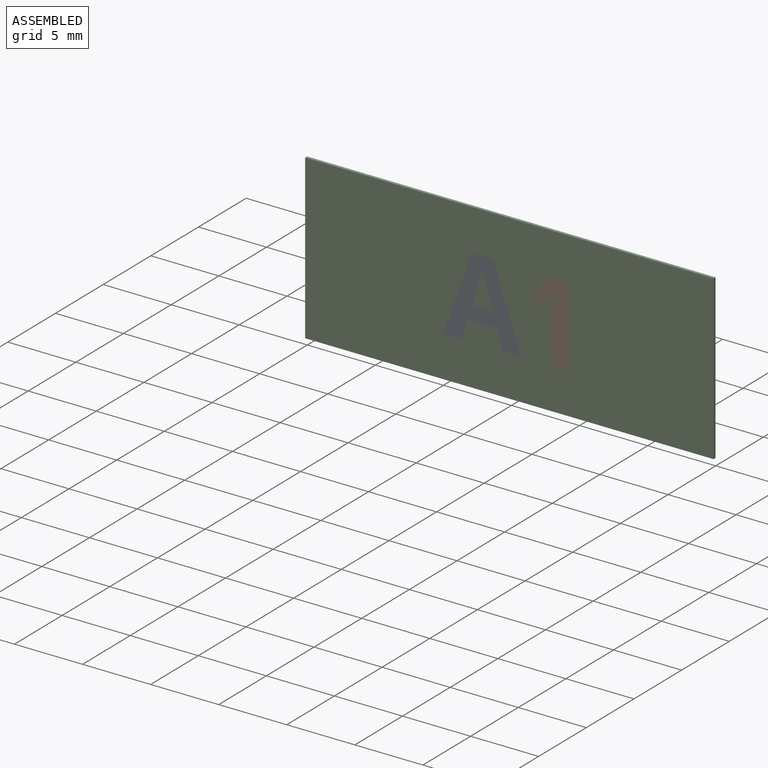
[diagram: assembled view]
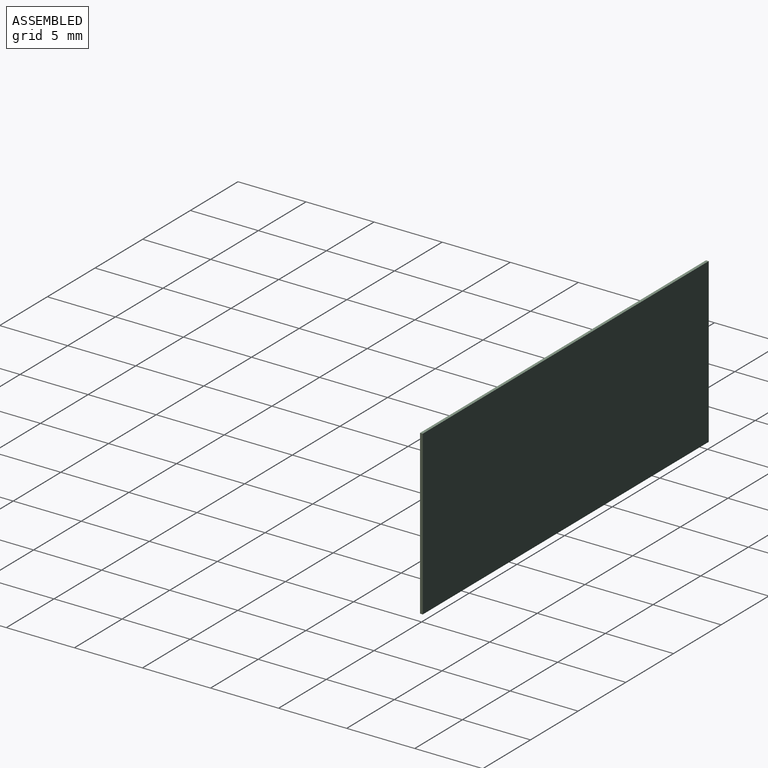
[diagram: assembled view, second angle]
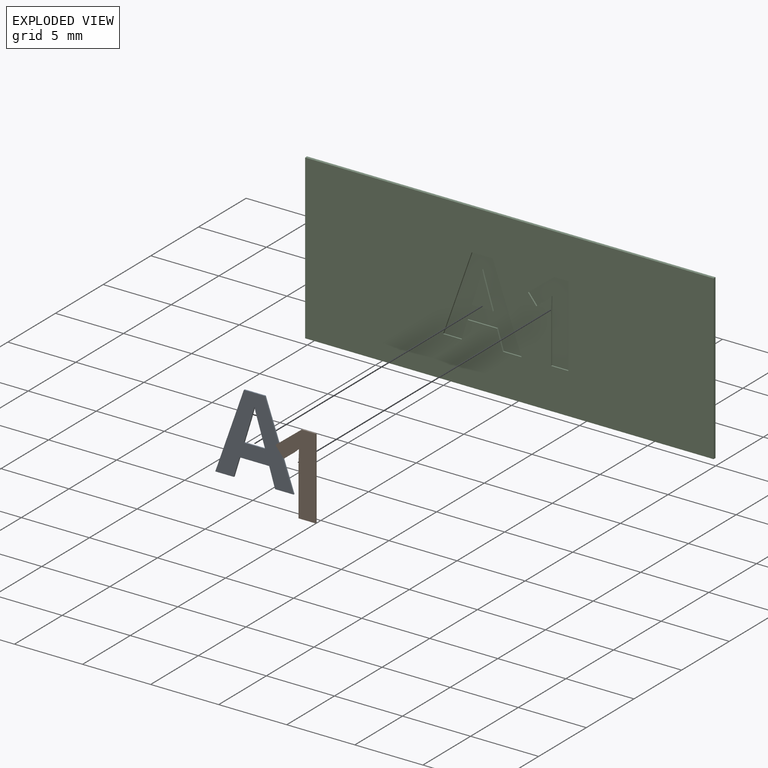
[diagram: exploded view]
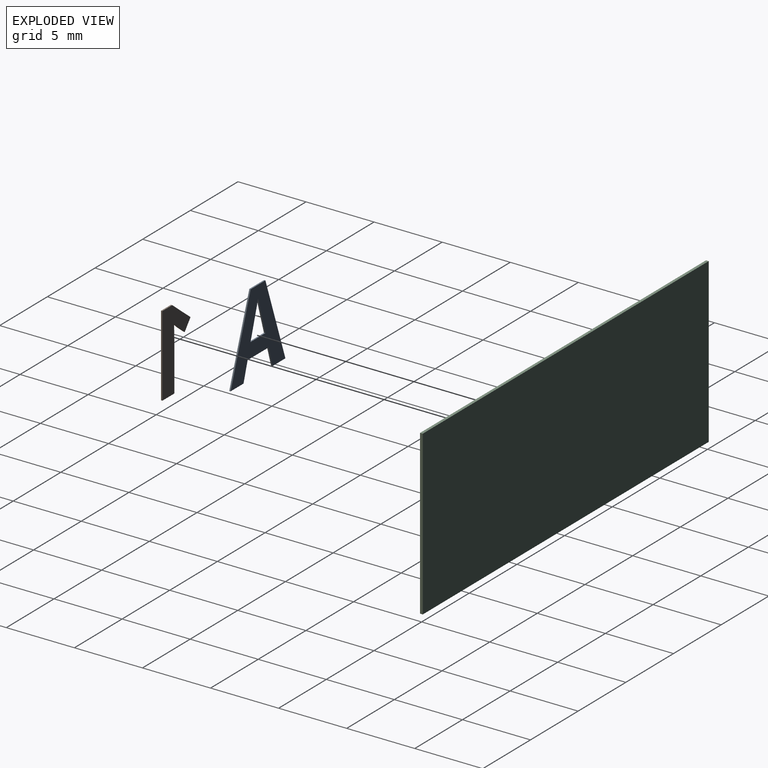
[diagram: exploded view, second angle]
ASSEMBLY  parts=3 mates=2
PART A: 14 faces, bbox 5.8x0.1x6 mm
  f0: plane 5.97x5.75mm, normal (0,-1,0), area 16.1mm2, adj f1,f2,f3,f4,f5,f6,f8,f9
  f1: plane 5.97x2.11mm, normal (0.94,0,0.33), area 0.6mm2, adj f0,f2,f7,f9
  f2: plane 1.54x0.1mm, normal (0,0,1), area 0.2mm2, adj f0,f1,f3,f7
  f3: plane 5.97x2.1mm, normal (-0.94,0,0.33), area 0.6mm2, adj f0,f2,f4,f7
  f4: plane 1.36x0.1mm, normal (0,0,-1), area 0.1mm2, adj f0,f3,f5,f7
  f5: plane 1.42x0.43mm, normal (0.96,0,-0.29), area 0.1mm2, adj f0,f4,f7,f8
  f6: extruded ~2.58x0.77mm, area 0.3mm2, adj f0,f7,f11,f12
  f7: plane 5.97x5.75mm, normal (0,1,0), area 16.1mm2, adj f1,f2,f3,f4,f5,f6,f8,f9
  f8: plane 2.17x0.1mm, normal (0,0,-1), area 0.2mm2, adj f0,f5,f7,f10
  f9: plane 1.36x0.1mm, normal (0,0,-1), area 0.1mm2, adj f0,f1,f7,f10
  f10: plane 1.42x0.43mm, normal (-0.96,0,-0.29), area 0.1mm2, adj f0,f7,f8,f9
  f11: extruded ~0.4x0.11mm, area 0mm2, adj f0,f6,f7,f13
  f12: plane 1.55x0.1mm, normal (0,0,1), area 0.2mm2, adj f0,f6,f7,f13
  f13: extruded ~2.18x0.67mm, area 0.2mm2, adj f0,f7,f11,f12
PART B: 12 faces, bbox 3x0.1x5.9 mm
  f0: plane 5.95x2.95mm, normal (0,-1,0), area 9.2mm2, adj f1,f2,f3,f4,f5,f6,f7,f9
  f1: plane 1.03x0.1mm, normal (0,0,1), area 0.1mm2, adj f0,f2,f8,f10
  f2: plane 1.92x1.53mm, normal (-0.62,0,0.78), area 0.2mm2, adj f0,f1,f3,f8
  f3: plane 0.76x0.61mm, normal (-0.78,0,-0.63), area 0.1mm2, adj f0,f2,f4,f8
  f4: plane 0.68x0.55mm, normal (0.63,0,-0.78), area 0.1mm2, adj f0,f3,f5,f8
  f5: extruded ~0.44x0.41mm, area 0.1mm2, adj f0,f4,f6,f8
  f6: plane 0.62x0.1mm, normal (-1,0,0.03), area 0.1mm2, adj f0,f5,f7,f8
  f7: plane 0.57x0.1mm, normal (-1,0,0.02), area 0.1mm2, adj f0,f6,f8,f9
  f8: plane 5.95x2.95mm, normal (0,1,0), area 9.2mm2, adj f1,f2,f3,f4,f5,f6,f7,f9
  f9: plane 3.44x0.1mm, normal (-1,0,0), area 0.3mm2, adj f0,f7,f8,f11
  f10: plane 5.95x0.1mm, normal (1,0,0), area 0.6mm2, adj f0,f1,f8,f11
  f11: plane 1.26x0.1mm, normal (0,0,-1), area 0.1mm2, adj f0,f8,f9,f10
PART C: 31 faces, bbox 30x0.2x12 mm
  f0: plane 30x12mm, normal (0,-1,0), area 332.7mm2, adj f1,f2,f3,f4,f6,f7,f8,f9
  f1: plane 12x0.2mm, normal (1,0,0), area 2.4mm2, adj f0,f2,f4,f5
  f2: plane 30x0.2mm, normal (0,0,1), area 6mm2, adj f0,f1,f3,f5
  f3: plane 12x0.2mm, normal (-1,0,0), area 2.4mm2, adj f0,f2,f4,f5
  f4: plane 30x0.2mm, normal (0,0,-1), area 6mm2, adj f0,f1,f3,f5
  f5: plane 30x12mm, normal (0,1,0), area 360mm2, adj f1,f2,f3,f4
  f6: plane 1.36x0.1mm, normal (0,0,1), area 0.1mm2, adj f0,f7,f17,f18
  f7: plane 5.97x2.11mm, normal (-0.94,0,-0.33), area 0.6mm2, adj f0,f6,f8,f18
  f8: plane 1.54x0.1mm, normal (0,0,-1), area 0.2mm2, adj f0,f7,f9,f18
  f9: plane 5.97x2.1mm, normal (0.94,0,-0.33), area 0.6mm2, adj f0,f8,f10,f18
  f10: plane 1.36x0.1mm, normal (0,0,1), area 0.1mm2, adj f0,f9,f11,f18
  f11: plane 1.42x0.43mm, normal (-0.96,0,0.29), area 0.1mm2, adj f0,f10,f12,f18
  f12: plane 2.17x0.1mm, normal (0,0,1), area 0.2mm2, adj f0,f11,f17,f18
  f13: plane 1.55x0.1mm, normal (0,0,-1), area 0.2mm2, adj f14,f16,f18,f19
  f14: extruded ~2.58x0.77mm, area 0.3mm2, adj f13,f15,f18,f19
  f15: extruded ~0.4x0.11mm, area 0mm2, adj f14,f16,f18,f19
  f16: extruded ~2.18x0.67mm, area 0.2mm2, adj f13,f15,f18,f19
  f17: plane 1.42x0.43mm, normal (0.96,0,0.29), area 0.1mm2, adj f0,f6,f12,f18
  f18: plane 5.97x5.75mm, normal (0,-1,0), area 16.1mm2, adj f6,f7,f8,f9,f10,f11,f12,f13
  f19: plane 2.58x1.55mm, normal (0,-1,0), area 2mm2, adj f13,f14,f15,f16
  f20: plane 5.95x0.1mm, normal (-1,0,0), area 0.6mm2, adj f0,f21,f29,f30
  f21: plane 1.03x0.1mm, normal (0,0,-1), area 0.1mm2, adj f0,f20,f22,f30
  f22: plane 1.92x1.53mm, normal (0.62,0,-0.78), area 0.2mm2, adj f0,f21,f23,f30
  f23: plane 0.76x0.61mm, normal (0.78,0,0.63), area 0.1mm2, adj f0,f22,f24,f30
  f24: plane 0.68x0.55mm, normal (-0.63,0,0.78), area 0.1mm2, adj f0,f23,f25,f30
  f25: extruded ~0.44x0.41mm, area 0.1mm2, adj f0,f24,f26,f30
  f26: plane 0.62x0.1mm, normal (1,0,-0.03), area 0.1mm2, adj f0,f25,f27,f30
  f27: plane 0.57x0.1mm, normal (1,0,-0.02), area 0.1mm2, adj f0,f26,f28,f30
  f28: plane 3.44x0.1mm, normal (1,0,0), area 0.3mm2, adj f0,f27,f29,f30
  f29: plane 1.26x0.1mm, normal (0,0,1), area 0.1mm2, adj f0,f20,f28,f30
  f30: plane 5.95x2.95mm, normal (0,-1,0), area 9.2mm2, adj f20,f21,f22,f23,f24,f25,f26,f27
PLACE A t=(-0.05,0.05,-0.03)mm
PLACE B t=(-0.05,0.05,-0.03)mm
PLACE C t=(-0.05,0.05,-0.03)mm
MATE fastened B.f0 <-> C.f0  axis (0,-1,0) through (3.02,-0.15,-3.03)mm
MATE fastened A.f0 <-> C.f0  axis (0,-1,0) through (-4.92,-0.15,-3.03)mm
